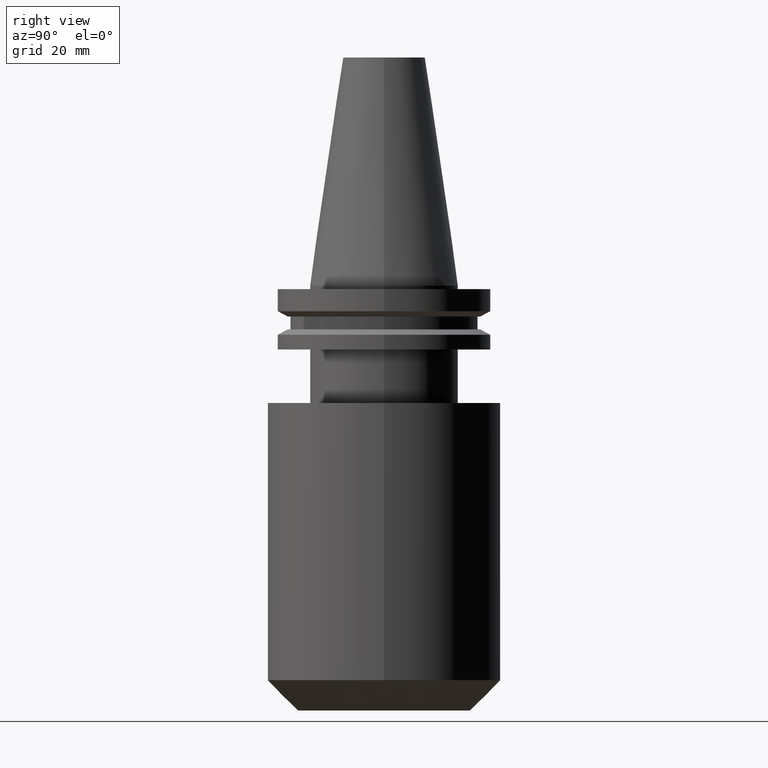
[diagram: clean part render]
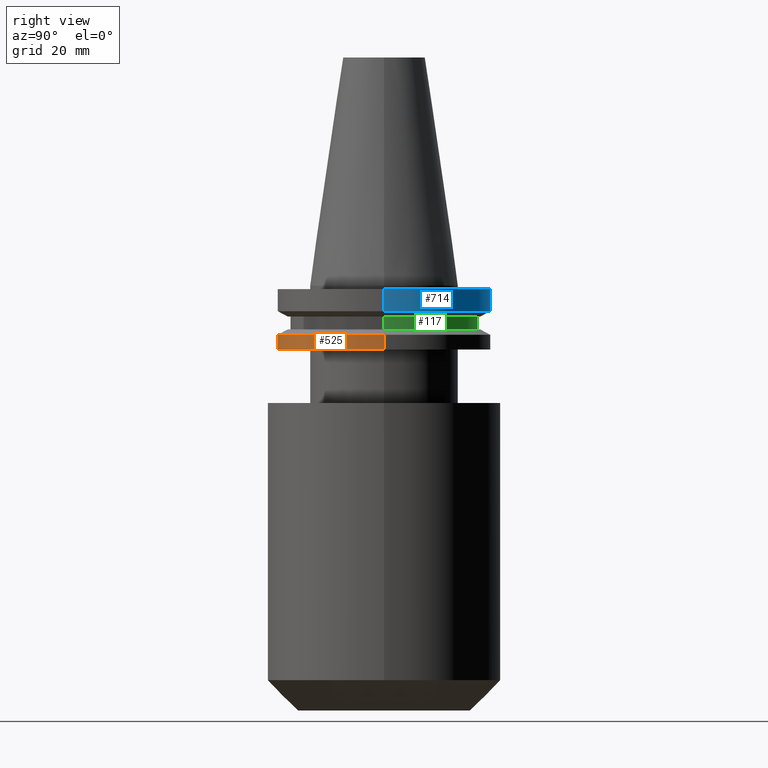
[diagram: same view with three faces highlighted in distinct colors, each labeled with its STEP entity id]
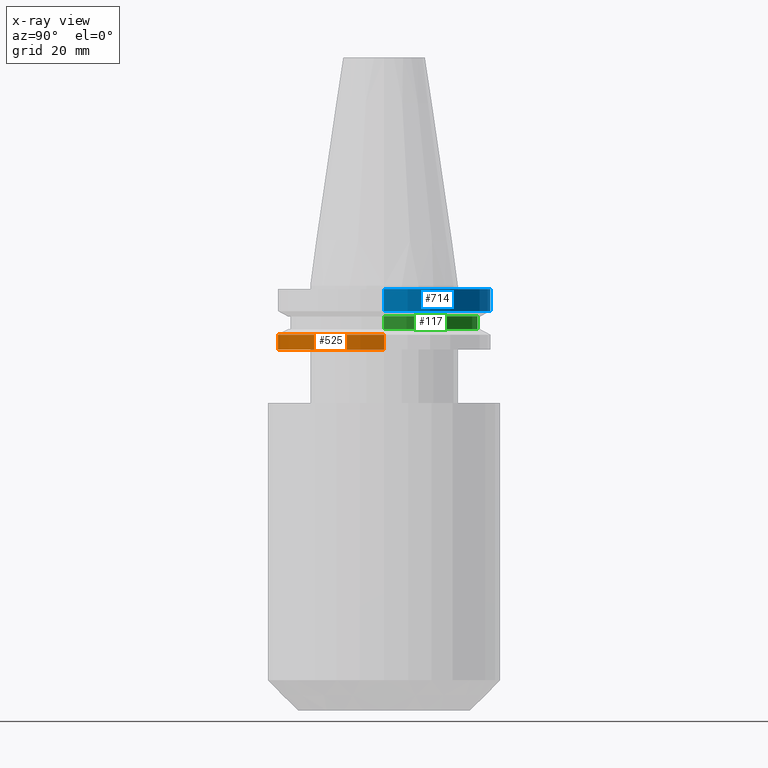
[diagram: x-ray of the same camera — body ghosted, the three highlighted faces saturated]
A machine part, right view with three faces highlighted in distinct colors.
The next image is the same camera in x-ray (body ghosted, the three faces saturated) — at least one of them is partly hidden behind the body in this view.
Their STEP definitions:

[orange] entity #525 — the highlighted cylindrical surface (partial cylindrical patch) has radius 31.75 mm, axis along (-0, -0, 1).
#25 = DIRECTION ( 'NONE',  ( -0.000000000000000000, -0.000000000000000000, 1.000000000000000000 ) ) ;
#28 = CARTESIAN_POINT ( 'NONE',  ( -31.75000000000000000, 3.888253587292846476E-15, -14.65472339340266572 ) ) ;
#64 = EDGE_LOOP ( 'NONE', ( #728, #153, #168, #216 ) ) ;
#68 = DIRECTION ( 'NONE',  ( 1.000000000000000000, 0.000000000000000000, 0.000000000000000000 ) ) ;
#74 = VECTOR ( 'NONE', #273, 1000.000000000000000 ) ;
#90 = CARTESIAN_POINT ( 'NONE',  ( 31.75000000000000000, 0.000000000000000000, -14.65472339340266572 ) ) ;
#103 = EDGE_CURVE ( 'NONE', #399, #828, #339, .T. ) ;
#120 = AXIS2_PLACEMENT_3D ( 'NONE', #280, #25, #489 ) ;
#153 = ORIENTED_EDGE ( 'NONE', *, *, #408, .T. ) ;
#168 = ORIENTED_EDGE ( 'NONE', *, *, #732, .T. ) ;
#183 = AXIS2_PLACEMENT_3D ( 'NONE', #846, #580, #68 ) ;
#216 = ORIENTED_EDGE ( 'NONE', *, *, #447, .F. ) ;
#219 = CARTESIAN_POINT ( 'NONE',  ( 31.75000000000000000, 0.000000000000000000, 68.25000000000000000 ) ) ;
#273 = DIRECTION ( 'NONE',  ( -0.000000000000000000, -0.000000000000000000, 1.000000000000000000 ) ) ;
#280 = CARTESIAN_POINT ( 'NONE',  ( 0.000000000000000000, 0.000000000000000000, -19.04999999999999716 ) ) ;
#288 = LINE ( 'NONE', #219, #744 ) ;
#330 = CIRCLE ( 'NONE', #120, 31.74999999999999289 ) ;
#339 = LINE ( 'NONE', #573, #74 ) ;
#377 = CYLINDRICAL_SURFACE ( 'NONE', #578, 31.75000000000000000 ) ;
#399 = VERTEX_POINT ( 'NONE', #605 ) ;
#408 = EDGE_CURVE ( 'NONE', #399, #741, #330, .T. ) ;
#441 = DIRECTION ( 'NONE',  ( -0.000000000000000000, -0.000000000000000000, 1.000000000000000000 ) ) ;
#446 = CARTESIAN_POINT ( 'NONE',  ( 0.000000000000000000, 0.000000000000000000, 68.25000000000000000 ) ) ;
#447 = EDGE_CURVE ( 'NONE', #828, #611, #818, .T. ) ;
#489 = DIRECTION ( 'NONE',  ( 1.000000000000000000, 0.000000000000000000, 0.000000000000000000 ) ) ;
#525 = ADVANCED_FACE ( 'NONE', ( #645 ), #377, .T. ) ;
#548 = CARTESIAN_POINT ( 'NONE',  ( 31.74999999999999289, 0.000000000000000000, -19.04999999999999716 ) ) ;
#573 = CARTESIAN_POINT ( 'NONE',  ( -31.75000000000000000, 3.888253587292846476E-15, 68.25000000000000000 ) ) ;
#578 = AXIS2_PLACEMENT_3D ( 'NONE', #446, #441, #649 ) ;
#580 = DIRECTION ( 'NONE',  ( -0.000000000000000000, -0.000000000000000000, 1.000000000000000000 ) ) ;
#605 = CARTESIAN_POINT ( 'NONE',  ( -31.74999999999999289, 3.888253587292845687E-15, -19.04999999999999716 ) ) ;
#611 = VERTEX_POINT ( 'NONE', #90 ) ;
#645 = FACE_OUTER_BOUND ( 'NONE', #64, .T. ) ;
#649 = DIRECTION ( 'NONE',  ( 1.000000000000000000, 0.000000000000000000, 0.000000000000000000 ) ) ;
#728 = ORIENTED_EDGE ( 'NONE', *, *, #103, .F. ) ;
#732 = EDGE_CURVE ( 'NONE', #741, #611, #288, .T. ) ;
#741 = VERTEX_POINT ( 'NONE', #548 ) ;
#744 = VECTOR ( 'NONE', #808, 1000.000000000000000 ) ;
#808 = DIRECTION ( 'NONE',  ( -0.000000000000000000, -0.000000000000000000, 1.000000000000000000 ) ) ;
#818 = CIRCLE ( 'NONE', #183, 31.75000000000000000 ) ;
#828 = VERTEX_POINT ( 'NONE', #28 ) ;
#846 = CARTESIAN_POINT ( 'NONE',  ( 0.000000000000000000, 0.000000000000000000, -14.65472339340266572 ) ) ;

[blue] entity #714 — the highlighted cylindrical surface (partial cylindrical patch) has radius 31.75 mm, axis along (-0, -0, 1).
#21 = VERTEX_POINT ( 'NONE', #242 ) ;
#41 = DIRECTION ( 'NONE',  ( -0.000000000000000000, -0.000000000000000000, 1.000000000000000000 ) ) ;
#119 = AXIS2_PLACEMENT_3D ( 'NONE', #692, #41, #169 ) ;
#129 = VERTEX_POINT ( 'NONE', #419 ) ;
#140 = AXIS2_PLACEMENT_3D ( 'NONE', #152, #621, #410 ) ;
#149 = ORIENTED_EDGE ( 'NONE', *, *, #431, .F. ) ;
#152 = CARTESIAN_POINT ( 'NONE',  ( 0.000000000000000000, 0.000000000000000000, -7.605276606597335842 ) ) ;
#158 = VERTEX_POINT ( 'NONE', #809 ) ;
#169 = DIRECTION ( 'NONE',  ( 1.000000000000000000, 0.000000000000000000, 0.000000000000000000 ) ) ;
#173 = EDGE_CURVE ( 'NONE', #21, #158, #764, .T. ) ;
#200 = VERTEX_POINT ( 'NONE', #348 ) ;
#236 = DIRECTION ( 'NONE',  ( 1.000000000000000000, 0.000000000000000000, 0.000000000000000000 ) ) ;
#242 = CARTESIAN_POINT ( 'NONE',  ( 31.75000000000000000, 0.000000000000000000, -7.605276606597335842 ) ) ;
#262 = VECTOR ( 'NONE', #710, 1000.000000000000000 ) ;
#320 = LINE ( 'NONE', #582, #262 ) ;
#344 = EDGE_LOOP ( 'NONE', ( #437, #421, #459, #149 ) ) ;
#348 = CARTESIAN_POINT ( 'NONE',  ( -31.75000000000000000, 3.888253587292846476E-15, -1.000000000000000888 ) ) ;
#410 = DIRECTION ( 'NONE',  ( 1.000000000000000000, 0.000000000000000000, 0.000000000000000000 ) ) ;
#419 = CARTESIAN_POINT ( 'NONE',  ( 31.75000000000000000, 0.000000000000000000, -1.000000000000000888 ) ) ;
#421 = ORIENTED_EDGE ( 'NONE', *, *, #466, .T. ) ;
#429 = CYLINDRICAL_SURFACE ( 'NONE', #648, 31.75000000000000000 ) ;
#431 = EDGE_CURVE ( 'NONE', #21, #129, #637, .T. ) ;
#437 = ORIENTED_EDGE ( 'NONE', *, *, #173, .T. ) ;
#443 = CARTESIAN_POINT ( 'NONE',  ( 31.75000000000000000, 0.000000000000000000, 68.25000000000000000 ) ) ;
#459 = ORIENTED_EDGE ( 'NONE', *, *, #751, .F. ) ;
#466 = EDGE_CURVE ( 'NONE', #158, #200, #320, .T. ) ;
#475 = CIRCLE ( 'NONE', #119, 31.75000000000000000 ) ;
#540 = DIRECTION ( 'NONE',  ( -0.000000000000000000, -0.000000000000000000, 1.000000000000000000 ) ) ;
#577 = DIRECTION ( 'NONE',  ( -0.000000000000000000, -0.000000000000000000, 1.000000000000000000 ) ) ;
#582 = CARTESIAN_POINT ( 'NONE',  ( -31.75000000000000000, 3.888253587292846476E-15, 68.25000000000000000 ) ) ;
#613 = FACE_OUTER_BOUND ( 'NONE', #344, .T. ) ;
#621 = DIRECTION ( 'NONE',  ( -0.000000000000000000, -0.000000000000000000, 1.000000000000000000 ) ) ;
#637 = LINE ( 'NONE', #443, #745 ) ;
#648 = AXIS2_PLACEMENT_3D ( 'NONE', #761, #540, #236 ) ;
#692 = CARTESIAN_POINT ( 'NONE',  ( 0.000000000000000000, 0.000000000000000000, -1.000000000000000888 ) ) ;
#710 = DIRECTION ( 'NONE',  ( -0.000000000000000000, -0.000000000000000000, 1.000000000000000000 ) ) ;
#714 = ADVANCED_FACE ( 'NONE', ( #613 ), #429, .T. ) ;
#745 = VECTOR ( 'NONE', #577, 1000.000000000000000 ) ;
#751 = EDGE_CURVE ( 'NONE', #129, #200, #475, .T. ) ;
#761 = CARTESIAN_POINT ( 'NONE',  ( 0.000000000000000000, 0.000000000000000000, 68.25000000000000000 ) ) ;
#764 = CIRCLE ( 'NONE', #140, 31.75000000000000000 ) ;
#809 = CARTESIAN_POINT ( 'NONE',  ( -31.75000000000000000, 3.888253587292846476E-15, -7.605276606597335842 ) ) ;

[green] entity #117 — the highlighted cylindrical surface (partial cylindrical patch) has radius 28.18 mm, axis along (-0, -0, 1).
#3 = VERTEX_POINT ( 'NONE', #643 ) ;
#24 = EDGE_CURVE ( 'NONE', #264, #3, #122, .T. ) ;
#49 = CIRCLE ( 'NONE', #476, 28.17999999999999972 ) ;
#54 = DIRECTION ( 'NONE',  ( -0.000000000000000000, -0.000000000000000000, 1.000000000000000000 ) ) ;
#72 = DIRECTION ( 'NONE',  ( 1.000000000000000000, 0.000000000000000000, 0.000000000000000000 ) ) ;
#83 = EDGE_CURVE ( 'NONE', #258, #264, #799, .T. ) ;
#86 = CARTESIAN_POINT ( 'NONE',  ( 0.000000000000000000, 0.000000000000000000, -9.204999999999991189 ) ) ;
#92 = EDGE_CURVE ( 'NONE', #258, #589, #125, .T. ) ;
#95 = DIRECTION ( 'NONE',  ( -0.000000000000000000, -0.000000000000000000, 1.000000000000000000 ) ) ;
#99 = CARTESIAN_POINT ( 'NONE',  ( 28.17999999999999972, 0.000000000000000000, -13.05499999999999794 ) ) ;
#117 = ADVANCED_FACE ( 'NONE', ( #723 ), #136, .T. ) ;
#122 = LINE ( 'NONE', #375, #217 ) ;
#125 = LINE ( 'NONE', #404, #274 ) ;
#136 = CYLINDRICAL_SURFACE ( 'NONE', #513, 28.17999999999999972 ) ;
#182 = AXIS2_PLACEMENT_3D ( 'NONE', #804, #730, #791 ) ;
#199 = DIRECTION ( 'NONE',  ( -0.000000000000000000, -0.000000000000000000, 1.000000000000000000 ) ) ;
#217 = VECTOR ( 'NONE', #54, 1000.000000000000000 ) ;
#230 = ORIENTED_EDGE ( 'NONE', *, *, #24, .T. ) ;
#258 = VERTEX_POINT ( 'NONE', #99 ) ;
#264 = VERTEX_POINT ( 'NONE', #610 ) ;
#274 = VECTOR ( 'NONE', #800, 1000.000000000000000 ) ;
#375 = CARTESIAN_POINT ( 'NONE',  ( -28.17999999999999972, 3.451054679997241634E-15, 68.25000000000000000 ) ) ;
#380 = EDGE_CURVE ( 'NONE', #589, #3, #49, .T. ) ;
#404 = CARTESIAN_POINT ( 'NONE',  ( 28.17999999999999972, 0.000000000000000000, 68.25000000000000000 ) ) ;
#414 = ORIENTED_EDGE ( 'NONE', *, *, #92, .F. ) ;
#476 = AXIS2_PLACEMENT_3D ( 'NONE', #86, #95, #820 ) ;
#513 = AXIS2_PLACEMENT_3D ( 'NONE', #656, #199, #72 ) ;
#589 = VERTEX_POINT ( 'NONE', #789 ) ;
#594 = EDGE_LOOP ( 'NONE', ( #748, #230, #654, #414 ) ) ;
#610 = CARTESIAN_POINT ( 'NONE',  ( -28.17999999999999972, 3.451054679997241634E-15, -13.05499999999999794 ) ) ;
#643 = CARTESIAN_POINT ( 'NONE',  ( -28.17999999999999972, 3.451054679997241634E-15, -9.204999999999991189 ) ) ;
#654 = ORIENTED_EDGE ( 'NONE', *, *, #380, .F. ) ;
#656 = CARTESIAN_POINT ( 'NONE',  ( 0.000000000000000000, 0.000000000000000000, 68.25000000000000000 ) ) ;
#723 = FACE_OUTER_BOUND ( 'NONE', #594, .T. ) ;
#730 = DIRECTION ( 'NONE',  ( -0.000000000000000000, -0.000000000000000000, 1.000000000000000000 ) ) ;
#748 = ORIENTED_EDGE ( 'NONE', *, *, #83, .T. ) ;
#789 = CARTESIAN_POINT ( 'NONE',  ( 28.17999999999999972, 0.000000000000000000, -9.204999999999991189 ) ) ;
#791 = DIRECTION ( 'NONE',  ( 1.000000000000000000, 0.000000000000000000, 0.000000000000000000 ) ) ;
#799 = CIRCLE ( 'NONE', #182, 28.17999999999999972 ) ;
#800 = DIRECTION ( 'NONE',  ( -0.000000000000000000, -0.000000000000000000, 1.000000000000000000 ) ) ;
#804 = CARTESIAN_POINT ( 'NONE',  ( 0.000000000000000000, 0.000000000000000000, -13.05499999999999794 ) ) ;
#820 = DIRECTION ( 'NONE',  ( 1.000000000000000000, 0.000000000000000000, 0.000000000000000000 ) ) ;